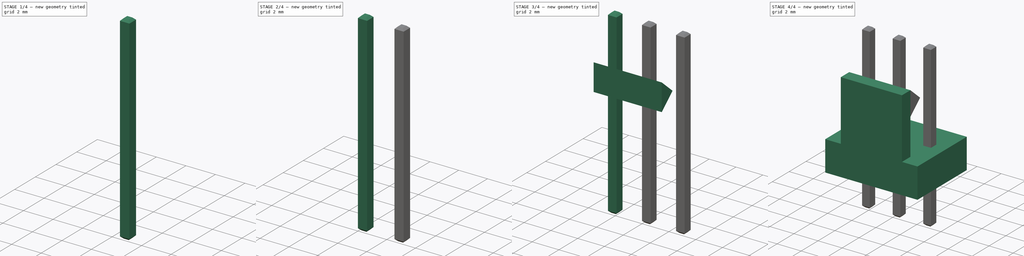
[diagram: build sequence overview — one tinted view per stage of 4, left to right]
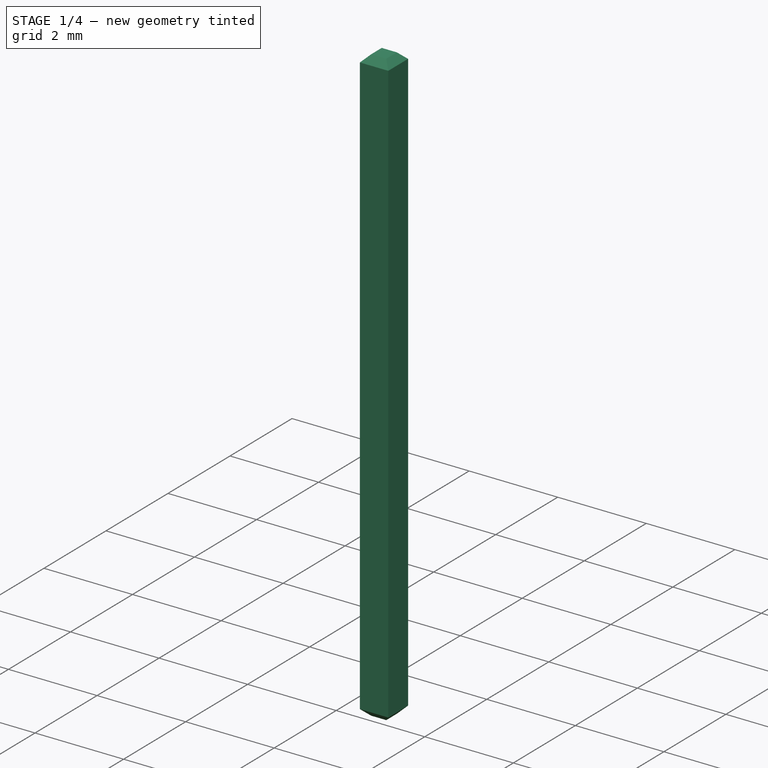
[diagram: stage 1 of 4 — iso view after this stage's code; geometry added in this stage tinted green]
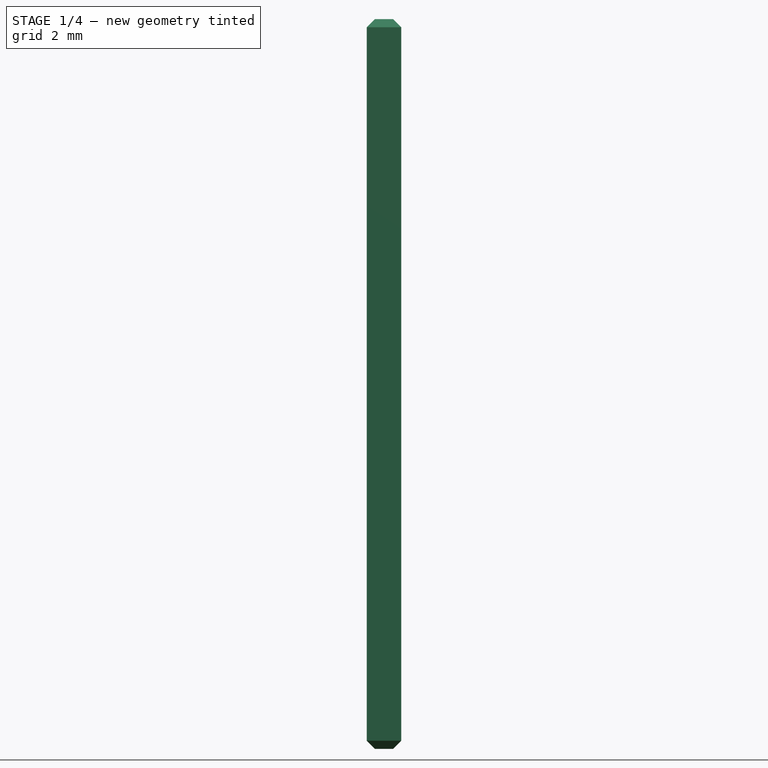
[diagram: stage 1 of 4 — front view after this stage's code; geometry added in this stage tinted green]
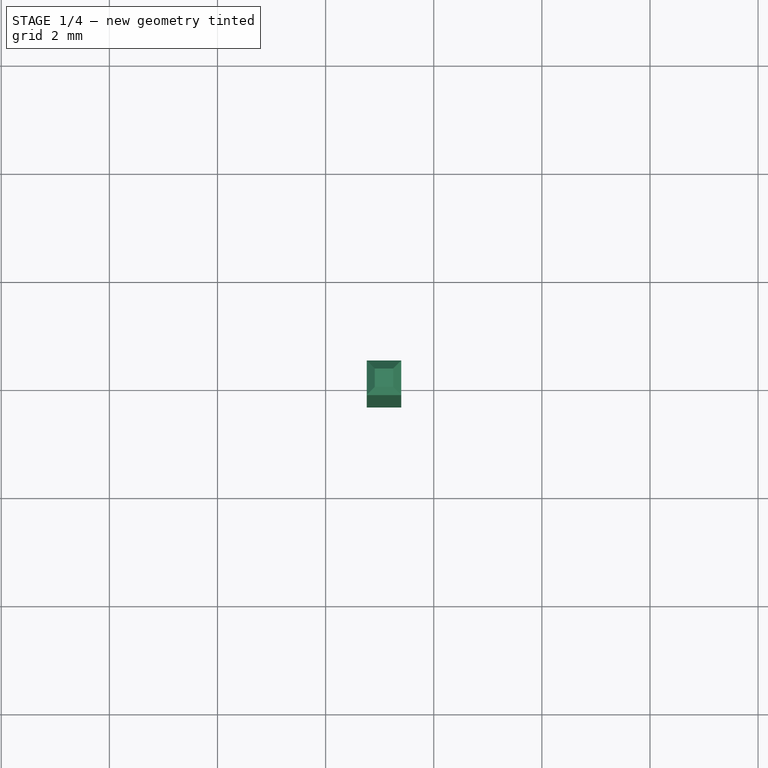
[diagram: stage 1 of 4 — top view after this stage's code; geometry added in this stage tinted green]
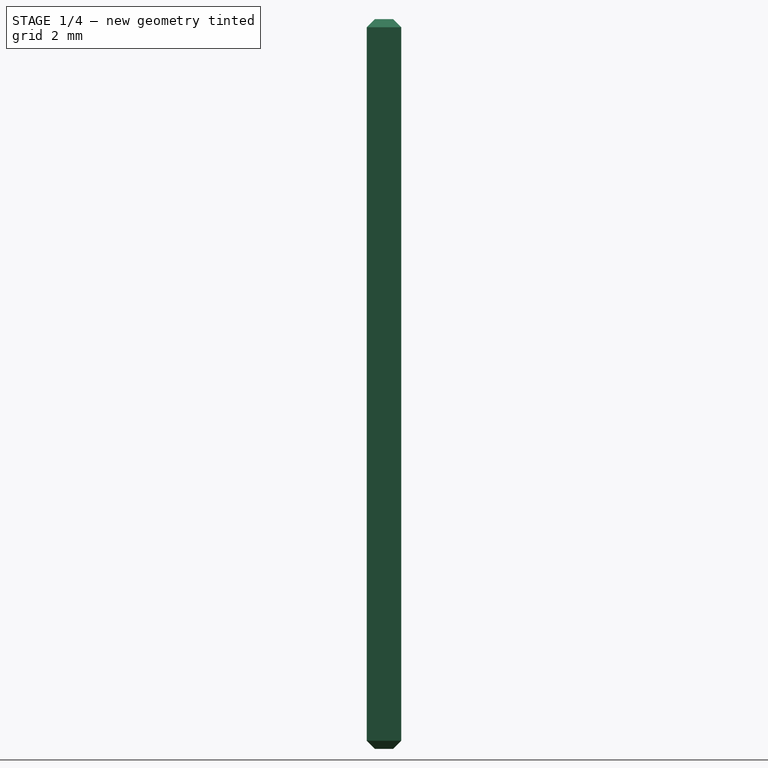
[diagram: stage 1 of 4 — right view after this stage's code; geometry added in this stage tinted green]
FCSTD DOCUMENT  (FreeCAD 1.0R39109 (Git))
Label: FanPinHeader_1x03_P2.54mm_Vertical
License: All rights reserved
LicenseURL: http://en.wikipedia.org/wiki/All_rights_reserved
objects: Sketcher::SketchObject×7, PartDesign::Pad×6, PartDesign::Chamfer×6, PartDesign::Pocket×1
note: 53 computed .brp shape members not serialized (recipe doc carries the construction recipe); baked Part::Feature solids carry a one-line shape summary decoded from their .brp

FEATURE [PartDesign::Pad] Pad005
  AllowMultiFace = false
  Direction = (0,0,1)
  Length = 10
  Length2 = 3.5
  Placement = pos=(0,0,0) rot=(0,0,1;3.14159rad)
  Profile = -> Sketch013
  Refine = true
  Suppressed = false
  Type = 4
FEATURE [PartDesign::Chamfer] Chamfer
  Angle = 45
  Base = -> Pad005 [Edge4,Edge7,Edge10,Edge12]
  ChamferType = 0
  FlipDirection = false
  Placement = pos=(0,0,0) rot=(0,0,1;3.14159rad)
  Refine = true
  Size = 0.15
  Size2 = 1
  SupportTransform = false
  Suppressed = false
  UseAllEdges = false
FEATURE [PartDesign::Chamfer] Chamfer005
  Angle = 45
  Base = -> Chamfer [Edge3,Edge11,Edge12,Edge7]
  ChamferType = 0
  FlipDirection = false
  Placement = pos=(0,0,0) rot=(0,0,1;3.14159rad)
  Refine = true
  Size = 0.15
  Size2 = 1
  SupportTransform = false
  Suppressed = false
  UseAllEdges = false
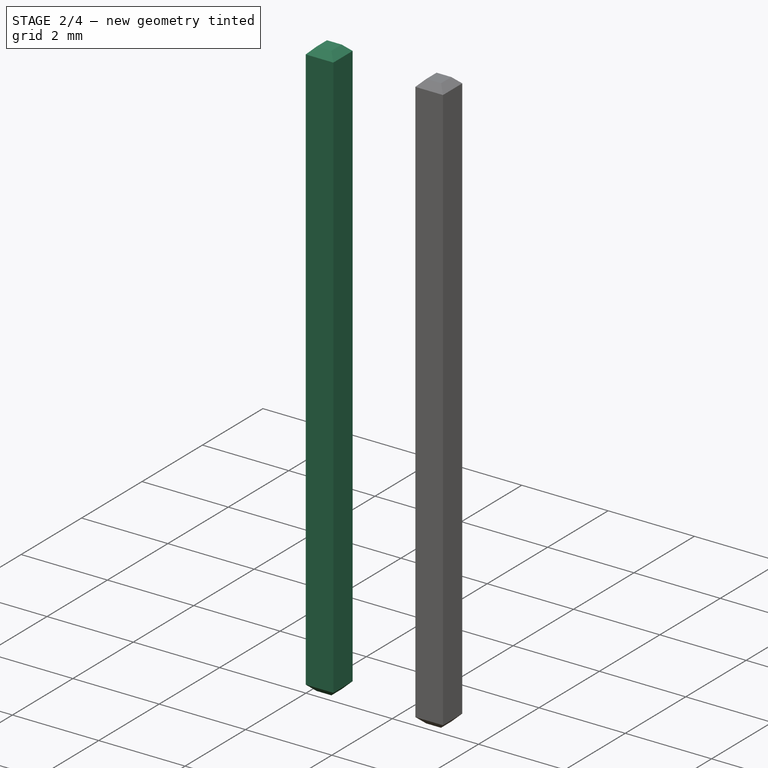
[diagram: stage 2 of 4 — iso view after this stage's code; geometry added in this stage tinted green]
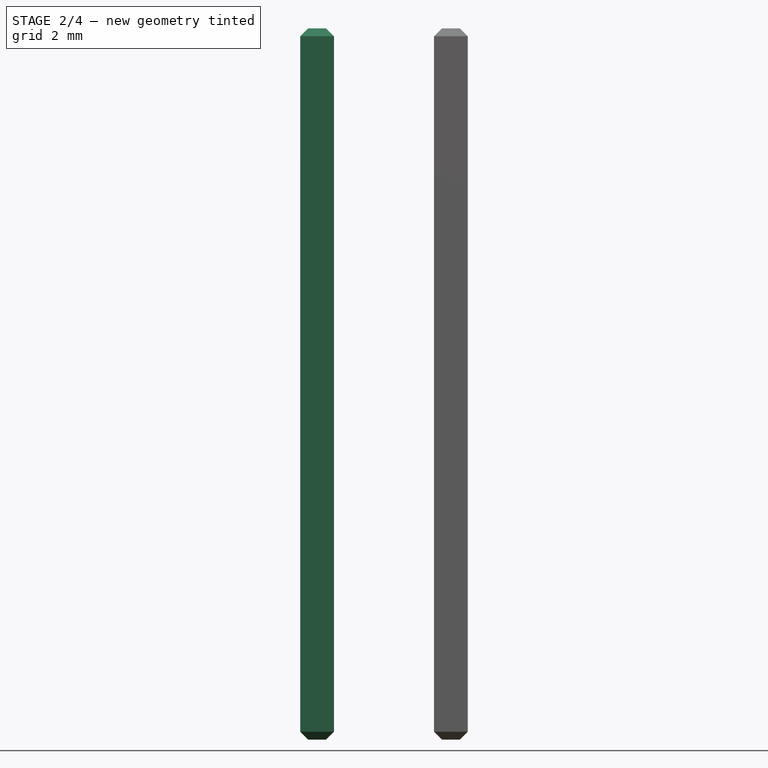
[diagram: stage 2 of 4 — front view after this stage's code; geometry added in this stage tinted green]
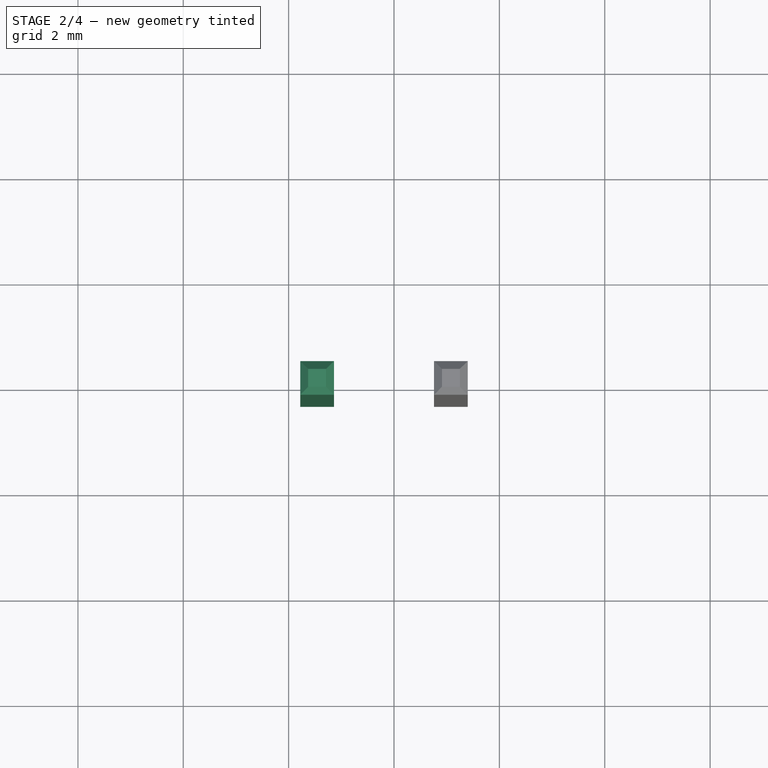
[diagram: stage 2 of 4 — top view after this stage's code; geometry added in this stage tinted green]
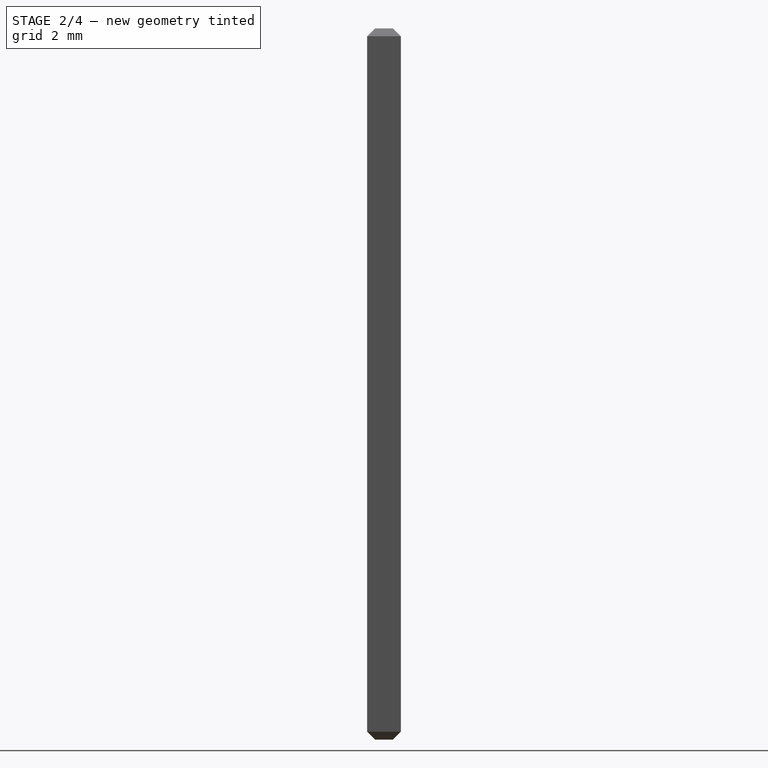
[diagram: stage 2 of 4 — right view after this stage's code; geometry added in this stage tinted green]
FEATURE [Sketcher::SketchObject] Sketch012
  ArcFitTolerance = 0
  FullyConstrained = true
  MakeInternals = false
  MapMode = 5
  Placement = pos=(0,0,0) rot=(0,0,1;3.14159rad)
  expr: Constraints[11] = 0.32 + 1 * 2.54
  sketch-geometry (4):
    g0: LineSegment StartX=-2.86 StartY=0.32 StartZ=0 EndX=-2.22 EndY=0.32 EndZ=0
    g1: LineSegment StartX=-2.22 StartY=0.32 StartZ=0 EndX=-2.22 EndY=-0.32 EndZ=0
    g2: LineSegment StartX=-2.22 StartY=-0.32 StartZ=0 EndX=-2.86 EndY=-0.32 EndZ=0
    g3: LineSegment StartX=-2.86 StartY=-0.32 StartZ=0 EndX=-2.86 EndY=0.32 EndZ=0
  constraints (12):
    c: Coincident(g0,g1)
    c: Coincident(g1,g2)
    c: Coincident(g2,g3)
    c: Coincident(g3,g0)
    c: Horizontal(g0)
    c: Horizontal(g2)
    c: Vertical(g1)
    c: Vertical(g3)
    c: DistanceX(g0,g0) = 0.64
    c: DistanceY(g1,g1) = 0.64
    c: DistanceY(g-1,g0) = 0.32
    c: DistanceX(g0,g-1) = 2.86
FEATURE [Sketcher::SketchObject] Sketch013
  ArcFitTolerance = 0
  FullyConstrained = true
  MakeInternals = false
  MapMode = 5
  Placement = pos=(0,0,0) rot=(0,0,1;3.14159rad)
  expr: Constraints[11] = 0.32 + 2 * 2.54
  sketch-geometry (4):
    g0: LineSegment StartX=-5.4 StartY=0.32 StartZ=0 EndX=-4.76 EndY=0.32 EndZ=0
    g1: LineSegment StartX=-4.76 StartY=0.32 StartZ=0 EndX=-4.76 EndY=-0.32 EndZ=0
    g2: LineSegment StartX=-4.76 StartY=-0.32 StartZ=0 EndX=-5.4 EndY=-0.32 EndZ=0
    g3: LineSegment StartX=-5.4 StartY=-0.32 StartZ=0 EndX=-5.4 EndY=0.32 EndZ=0
  constraints (12):
    c: Coincident(g0,g1)
    c: Coincident(g1,g2)
    c: Coincident(g2,g3)
    c: Coincident(g3,g0)
    c: Horizontal(g0)
    c: Horizontal(g2)
    c: Vertical(g1)
    c: Vertical(g3)
    c: DistanceX(g0,g0) = 0.64
    c: DistanceY(g1,g1) = 0.64
    c: DistanceY(g-1,g0) = 0.32
    c: DistanceX(g0,g-1) = 5.4
FEATURE [PartDesign::Pad] Pad004
  AllowMultiFace = false
  Direction = (0,0,1)
  Length = 10
  Length2 = 3.5
  Placement = pos=(0,0,0) rot=(0,0,1;3.14159rad)
  Profile = -> Sketch012
  Refine = true
  Suppressed = false
  Type = 4
FEATURE [PartDesign::Chamfer] Chamfer001
  Angle = 45
  Base = -> Pad004 [Edge4,Edge7,Edge10,Edge12]
  ChamferType = 0
  FlipDirection = false
  Placement = pos=(0,0,0) rot=(0,0,1;3.14159rad)
  Refine = true
  Size = 0.15
  Size2 = 1
  SupportTransform = false
  Suppressed = false
  UseAllEdges = false
FEATURE [PartDesign::Chamfer] Chamfer004
  Angle = 45
  Base = -> Chamfer001 [Edge3,Edge11,Edge12,Edge7]
  ChamferType = 0
  FlipDirection = false
  Placement = pos=(0,0,0) rot=(0,0,1;3.14159rad)
  Refine = true
  Size = 0.15
  Size2 = 1
  SupportTransform = false
  Suppressed = false
  UseAllEdges = false
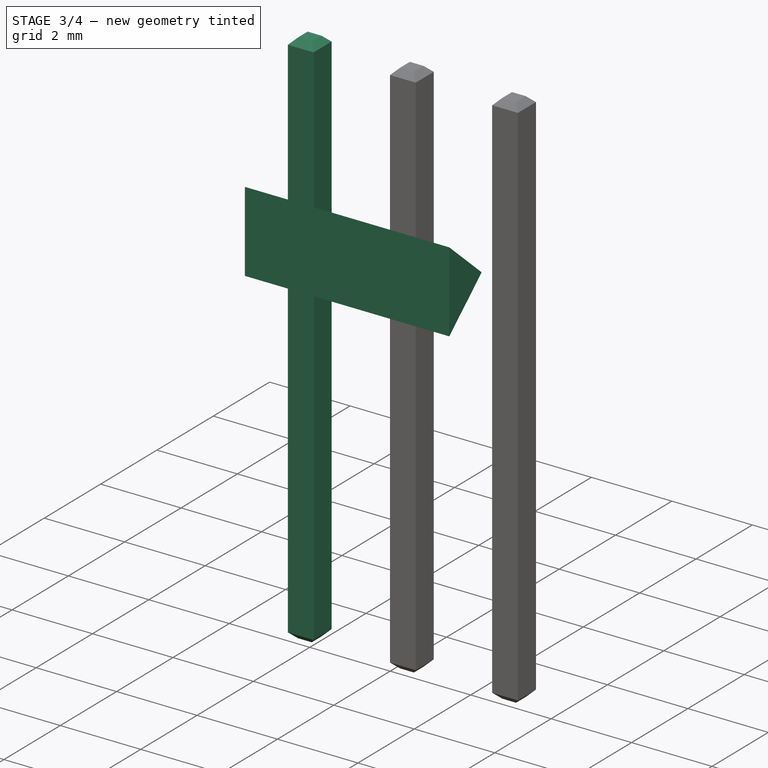
[diagram: stage 3 of 4 — iso view after this stage's code; geometry added in this stage tinted green]
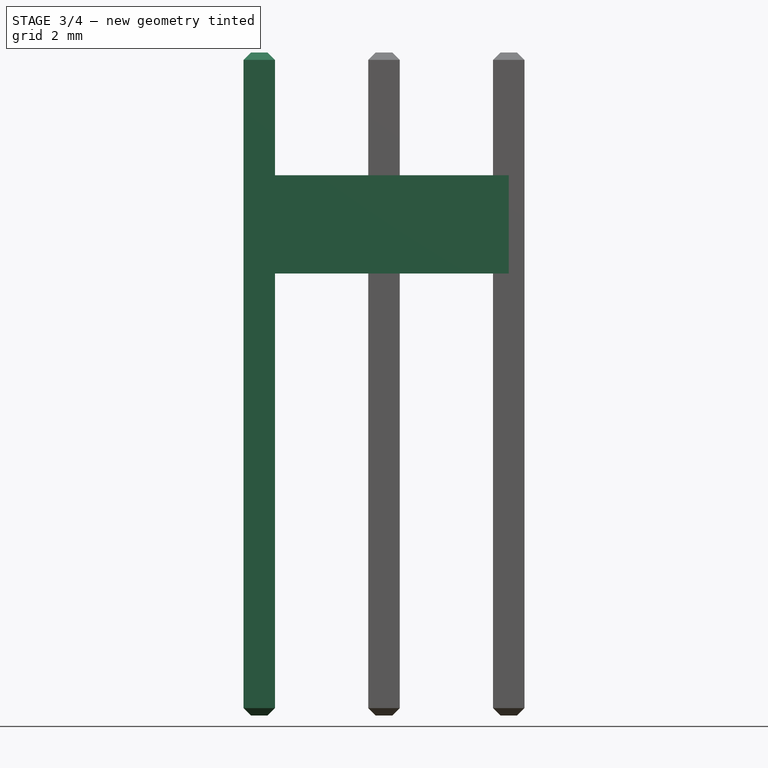
[diagram: stage 3 of 4 — front view after this stage's code; geometry added in this stage tinted green]
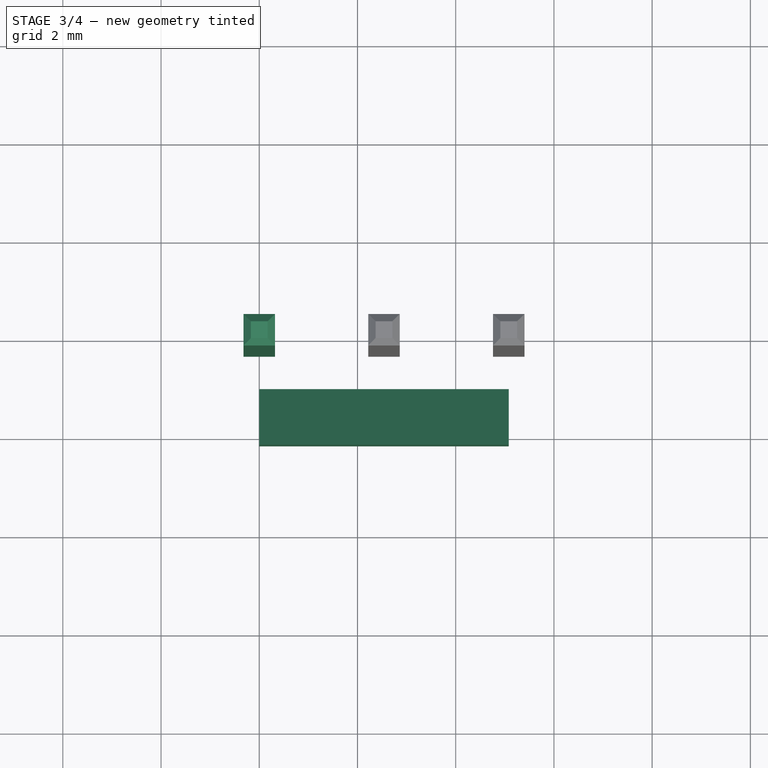
[diagram: stage 3 of 4 — top view after this stage's code; geometry added in this stage tinted green]
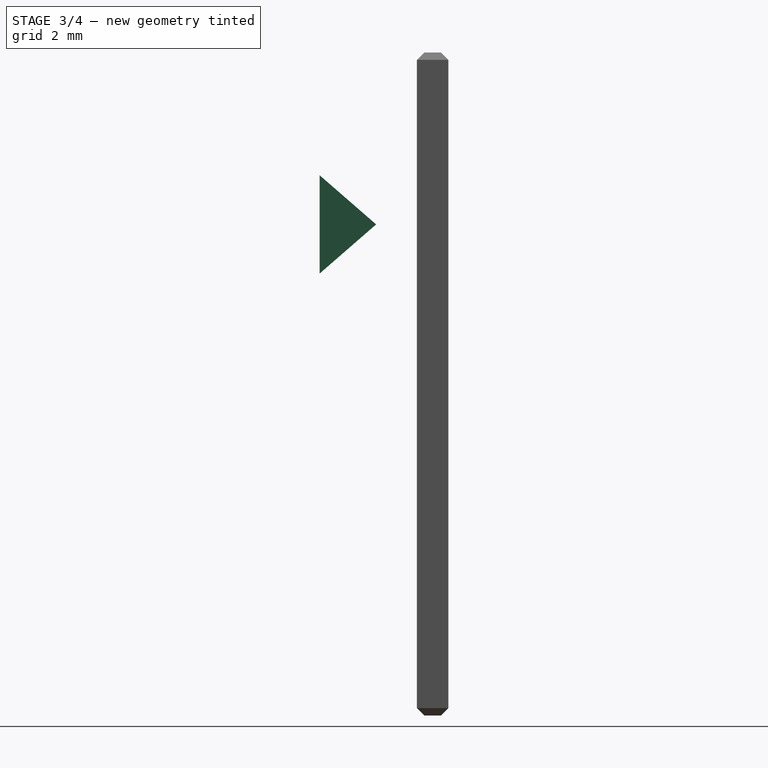
[diagram: stage 3 of 4 — right view after this stage's code; geometry added in this stage tinted green]
FEATURE [Sketcher::SketchObject] Sketch002
  ArcFitTolerance = 0
  AttachmentSupport = -> [Pad001]
  ExternalGeometry = -> [Pad001]
  FullyConstrained = false
  MakeInternals = false
  MapMode = 5
  Placement = pos=(0,0,0) rot=(0.57735,-0.57735,-0.57735;2.0944rad)
  sketch-geometry (3):
    g0: LineSegment StartX=2.3 StartY=7.5 StartZ=0 EndX=2.3 EndY=5.5 EndZ=0
    g1: LineSegment StartX=2.3 StartY=5.5 StartZ=0 EndX=1.15 EndY=6.5 EndZ=0
    g2: LineSegment StartX=1.15 StartY=6.5 StartZ=0 EndX=2.3 EndY=7.5 EndZ=0
  constraints (8):
    c: Coincident(g0,g-4)
    c: PointOnObject(g0,g-4)
    c: Coincident(g1,g0)
    c: Coincident(g2,g1)
    c: Coincident(g2,g0)
    c: DistanceY(g1,g0) = 1
    c: DistanceY(g0,g1) = 1  'd1'
    c: DistanceX(g-1,g1) = 1.15  'Constraint8'
FEATURE [PartDesign::Pad] Pad002
  AllowMultiFace = false
  Direction = (1,1,1)
  Length = 5.08
  Length2 = 100
  Placement = pos=(0,0,0) rot=(0,0,1;3.14159rad)
  Profile = -> Sketch002
  Refine = true
  Reversed = true
  Suppressed = false
  Type = 0
FEATURE [Sketcher::SketchObject] Sketch011
  ArcFitTolerance = 0
  FullyConstrained = true
  MakeInternals = false
  MapMode = 5
  Placement = pos=(0,0,0) rot=(0,0,1;3.14159rad)
  expr: Constraints[11] = 0.32 + 0 * 2.54
  sketch-geometry (4):
    g0: LineSegment StartX=-0.32 StartY=0.32 StartZ=0 EndX=0.32 EndY=0.32 EndZ=0
    g1: LineSegment StartX=0.32 StartY=0.32 StartZ=0 EndX=0.32 EndY=-0.32 EndZ=0
    g2: LineSegment StartX=0.32 StartY=-0.32 StartZ=0 EndX=-0.32 EndY=-0.32 EndZ=0
    g3: LineSegment StartX=-0.32 StartY=-0.32 StartZ=0 EndX=-0.32 EndY=0.32 EndZ=0
  constraints (12):
    c: Coincident(g0,g1)
    c: Coincident(g1,g2)
    c: Coincident(g2,g3)
    c: Coincident(g3,g0)
    c: Horizontal(g0)
    c: Horizontal(g2)
    c: Vertical(g1)
    c: Vertical(g3)
    c: DistanceX(g0,g0) = 0.64
    c: DistanceY(g1,g1) = 0.64
    c: DistanceY(g-1,g0) = 0.32
    c: DistanceX(g0,g-1) = 0.32
FEATURE [PartDesign::Pad] Pad003
  AllowMultiFace = false
  Direction = (0,0,1)
  Length = 10
  Length2 = 3.5
  Placement = pos=(0,0,0) rot=(0,0,1;3.14159rad)
  Profile = -> Sketch011
  Refine = true
  Suppressed = false
  Type = 4
FEATURE [PartDesign::Chamfer] Chamfer002
  Angle = 45
  Base = -> Pad003 [Edge4,Edge7,Edge10,Edge12]
  ChamferType = 0
  FlipDirection = false
  Placement = pos=(0,0,0) rot=(0,0,1;3.14159rad)
  Refine = true
  Size = 0.15
  Size2 = 1
  SupportTransform = false
  Suppressed = false
  UseAllEdges = false
FEATURE [PartDesign::Chamfer] Chamfer003
  Angle = 45
  Base = -> Chamfer002 [Edge3,Edge11,Edge12,Edge7]
  ChamferType = 0
  FlipDirection = false
  Placement = pos=(0,0,0) rot=(0,0,1;3.14159rad)
  Refine = true
  Size = 0.15
  Size2 = 1
  SupportTransform = false
  Suppressed = false
  UseAllEdges = false
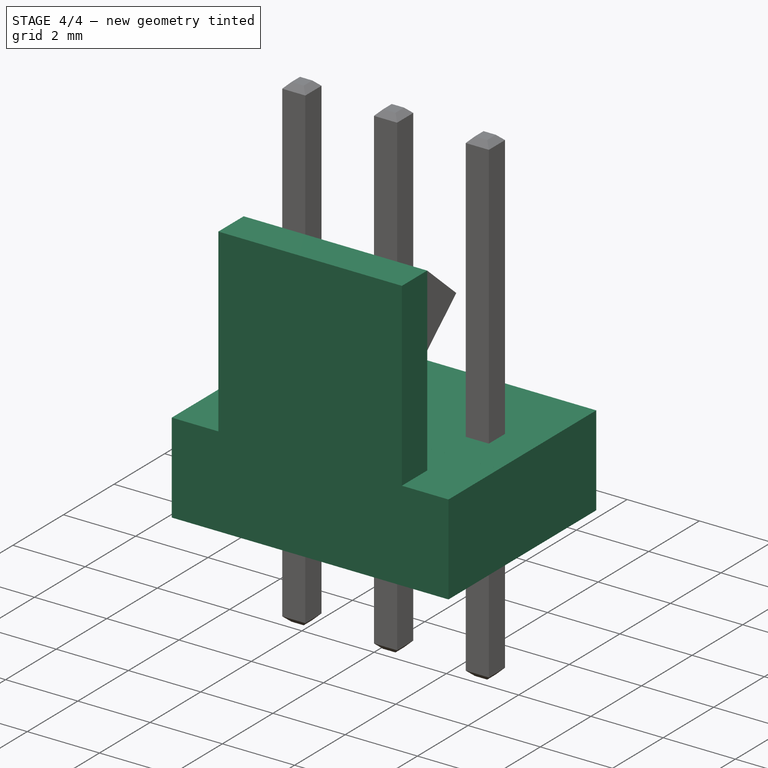
[diagram: stage 4 of 4 — iso view after this stage's code; geometry added in this stage tinted green]
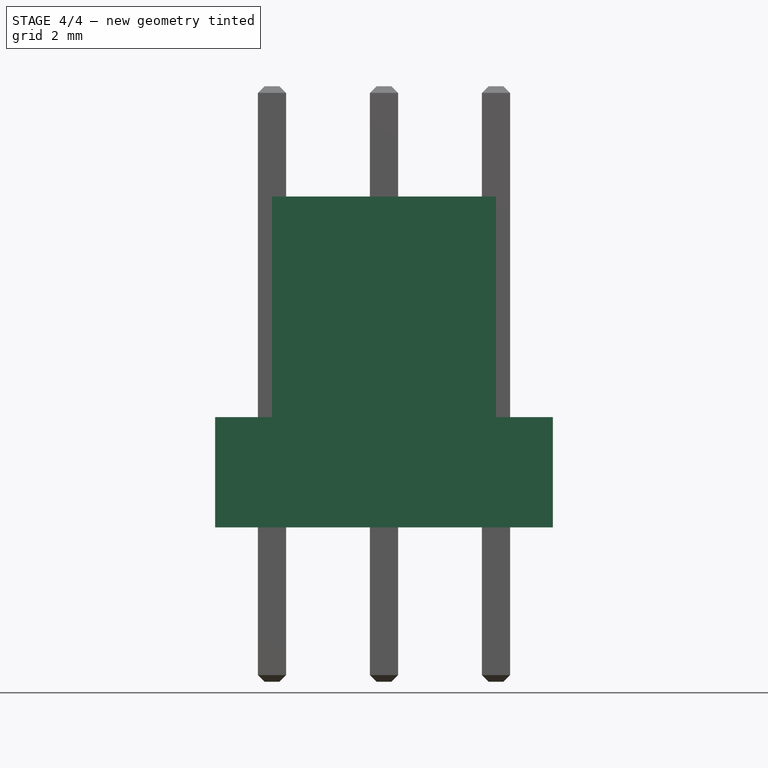
[diagram: stage 4 of 4 — front view after this stage's code; geometry added in this stage tinted green]
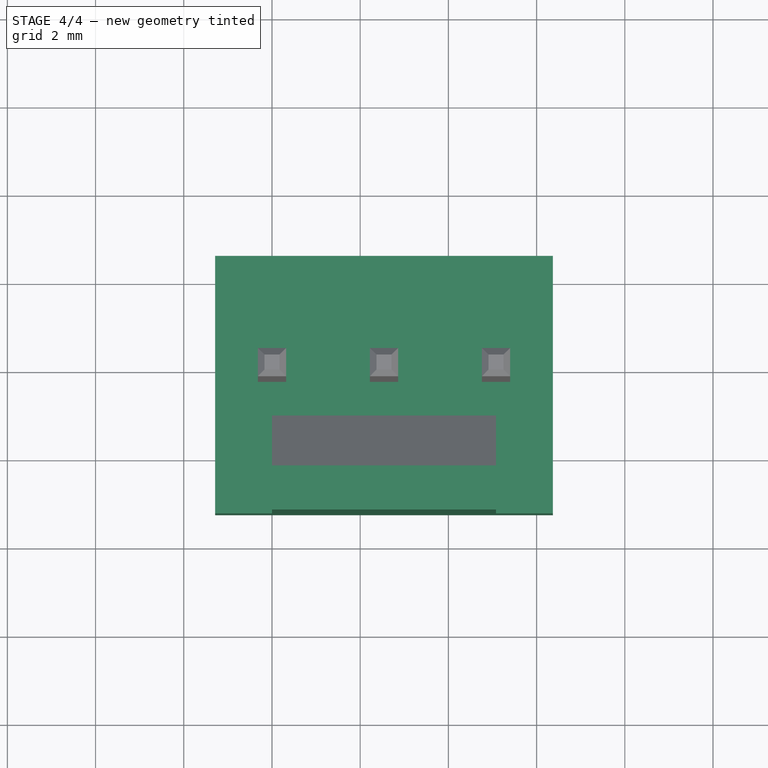
[diagram: stage 4 of 4 — top view after this stage's code; geometry added in this stage tinted green]
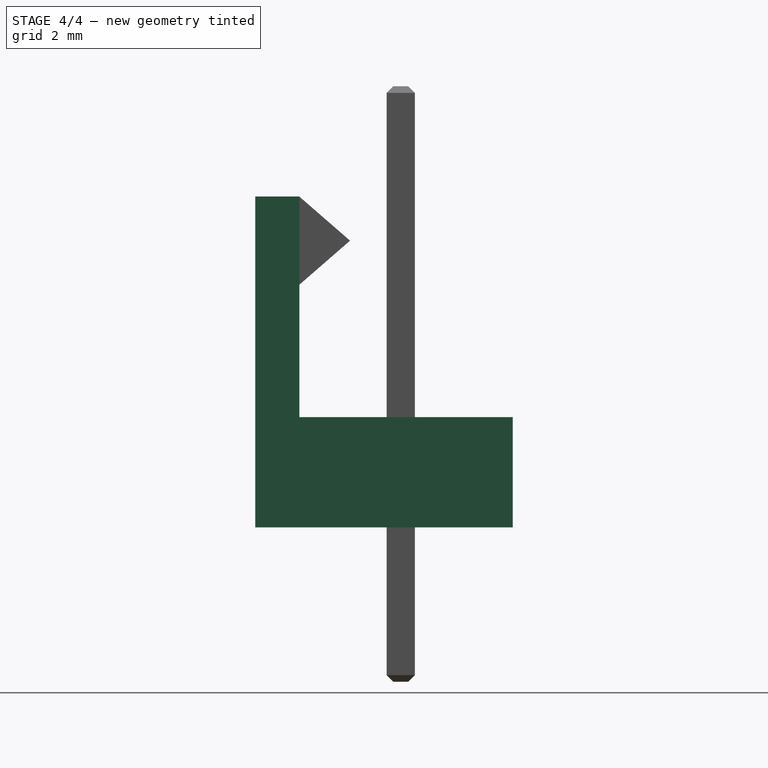
[diagram: stage 4 of 4 — right view after this stage's code; geometry added in this stage tinted green]
FEATURE [Sketcher::SketchObject] Sketch
  ArcFitTolerance = 0
  FullyConstrained = true
  MakeInternals = false
  MapMode = 5
  Placement = pos=(0,0,0) rot=(0,0,1;3.14159rad)
  expr: Constraints[8] = 2 * 2.54 + 2 * 1.29
  sketch-geometry (4):
    g0: LineSegment StartX=-6.37 StartY=-2.54 StartZ=0 EndX=1.29 EndY=-2.54 EndZ=0
    g1: LineSegment StartX=1.29 StartY=-2.54 StartZ=0 EndX=1.29 EndY=3.3 EndZ=0
    g2: LineSegment StartX=1.29 StartY=3.3 StartZ=0 EndX=-6.37 EndY=3.3 EndZ=0
    g3: LineSegment StartX=-6.37 StartY=3.3 StartZ=0 EndX=-6.37 EndY=-2.54 EndZ=0
  constraints (12):
    c: Coincident(g0,g1)
    c: Coincident(g1,g2)
    c: Coincident(g2,g3)
    c: Coincident(g3,g0)
    c: Horizontal(g0)
    c: Horizontal(g2)
    c: Vertical(g1)
    c: Vertical(g3)
    c: DistanceX(g2,g2) = 7.66
    c: DistanceY(g1,g1) = 5.84
    c: DistanceY(g0,g-1) = 2.54
    c: DistanceX(g-1,g0) = 1.29
FEATURE [PartDesign::Pad] Pad
  AllowMultiFace = false
  Direction = (0,0,1)
  Length = 2.5
  Length2 = 100
  Placement = pos=(0,0,0) rot=(0,0,1;3.14159rad)
  Profile = -> Sketch
  Refine = true
  Suppressed = false
  Type = 0
FEATURE [Sketcher::SketchObject] Sketch001
  ArcFitTolerance = 0
  AttachmentSupport = -> [Pad]
  FullyConstrained = true
  MakeInternals = false
  MapMode = 5
  Placement = pos=(0,0,2.5) rot=(0,0,1;3.14159rad)
  sketch-geometry (4):
    g0: LineSegment StartX=0 StartY=3.3 StartZ=0 EndX=-5.08 EndY=3.3 EndZ=0
    g1: LineSegment StartX=-5.08 StartY=3.3 StartZ=0 EndX=-5.08 EndY=2.3 EndZ=0
    g2: LineSegment StartX=-5.08 StartY=2.3 StartZ=0 EndX=0 EndY=2.3 EndZ=0
    g3: LineSegment StartX=0 StartY=2.3 StartZ=0 EndX=0 EndY=3.3 EndZ=0
  constraints (12):
    c: Coincident(g0,g1)
    c: Coincident(g1,g2)
    c: Coincident(g2,g3)
    c: Coincident(g3,g0)
    c: Horizontal(g0)
    c: Horizontal(g2)
    c: Vertical(g1)
    c: Vertical(g3)
    c: PointOnObject(g0,g-2)
    c: DistanceY(g3,g3) = 1
    c: DistanceX(g0,g0) = 5.08
    c: DistanceY(g-1,g2) = 2.3
FEATURE [PartDesign::Pad] Pad001
  AllowMultiFace = false
  Direction = (0,0,1)
  Length = 5
  Length2 = 100
  Placement = pos=(0,0,0) rot=(0,0,1;3.14159rad)
  Profile = -> Sketch001
  Refine = true
  Suppressed = false
  Type = 0
FEATURE [Sketcher::SketchObject] Sketch015
  ArcFitTolerance = 0
  AttachmentSupport = -> [Pad002]
  ExternalGeometry = -> [Pad002]
  FullyConstrained = false
  MakeInternals = false
  MapMode = 5
  Placement = pos=(-1.29,2e-16,0) rot=(0.57735,-0.57735,-0.57735;2.0944rad)
  sketch-geometry (2):
    g0: ArcOfCircle CenterX=1.8 CenterY=2.5 CenterZ=0 NormalX=0 NormalY=0 NormalZ=1 AngleXU=0 Radius=0.5 StartAngle=3.14159 EndAngle=6.28319
    g1: LineSegment StartX=1.3 StartY=2.5 StartZ=0 EndX=2.3 EndY=2.5 EndZ=0
  constraints (6):
    c: Coincident(g0,g-3)
    c: Coincident(g1,g0)
    c: Coincident(g1,g0)
    c: Horizontal(g1)
    c: PointOnObject(g0,g1)
    c: DistanceX(g1,g1) = 1
FEATURE [PartDesign::Pocket] Pocket
  AllowMultiFace = false
  Direction = (1,1,1)
  Length = 5
  Length2 = 5
  Placement = pos=(0,0,0) rot=(0,0,1;3.14159rad)
  Profile = -> Sketch015
  Refine = true
  Suppressed = false
  Type = 1
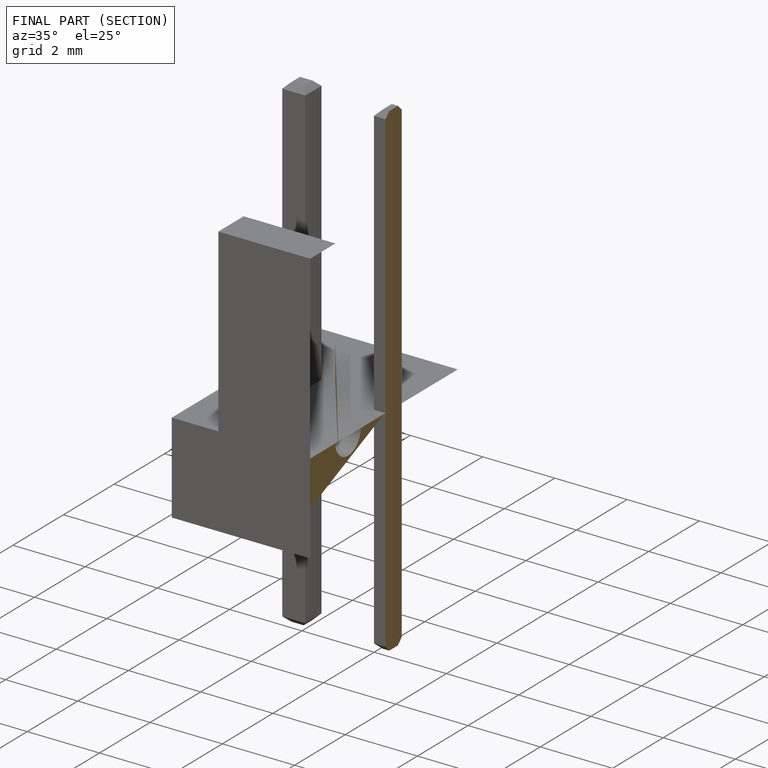
[diagram: finished part — half-section view (interior)]
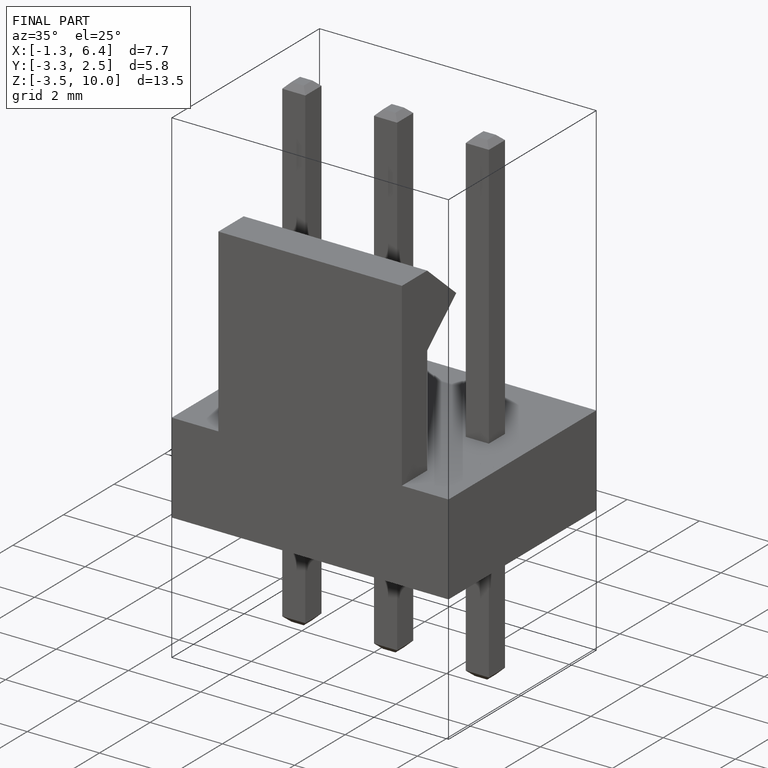
[diagram: finished part — iso view with bounding-box wireframe]
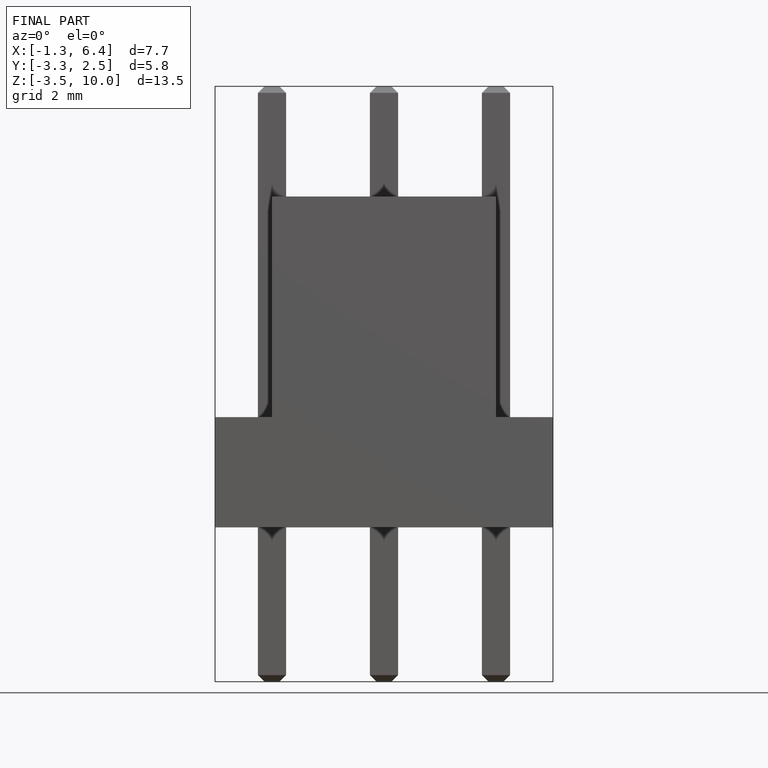
[diagram: finished part — front view with bounding-box wireframe]
